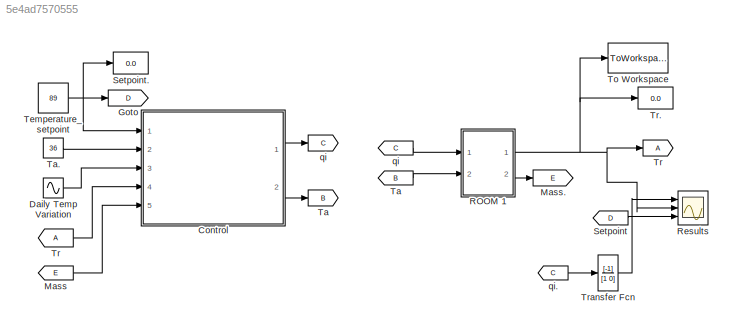
MODEL slx_5e4ad7570555
KIND model
CONFIG AbsTol = auto
CONFIG FixedStep = auto
CONFIG InitFcn = Addpath_websocket;\nserver = Sim_server(10000);
CONFIG MaxStep = auto
CONFIG MinStep = auto
CONFIG RelTol = 1e-3
CONFIG SampleTimeConstraint = Unconstrained
CONFIG Solver = VariableStepAuto
CONFIG SolverMode = Auto
CONFIG SolverName = VariableStepAuto
CONFIG StartTime = 0.0
CONFIG StopFcn = server.stop
CONFIG StopTime = Inf
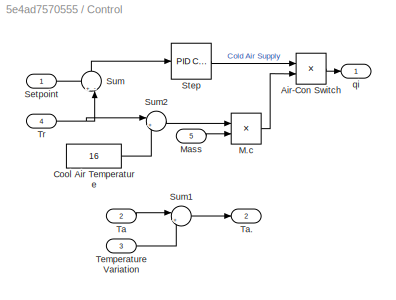
BLOCK [SubSystem] Control
  Ports = [5, 2]
  RequestExecContextInheritance = off
  Variant = off
BLOCK [Product] Control/Air-Con Switch
  InputSameDT = off
  OutDataTypeStr = Inherit: Inherit via internal rule
  OutMax = 24
  OutMin = 16
  Ports = [2, 1]
  SaturateOnIntegerOverflow = off
BLOCK [Constant] Control/Cool  Air Temperature
  Value = 16
BLOCK [Product] Control/M.c
  InputSameDT = off
  OutDataTypeStr = Inherit: Inherit via internal rule
  Ports = [2, 1]
  SaturateOnIntegerOverflow = off
BLOCK [Inport] Control/Mass
  IconDisplay = Port number
  Port = 5
BLOCK [Inport] Control/Setpoint
  IconDisplay = Port number
BLOCK [Reference] Control/Step   REF=simulink/Continuous/PID Controller
  Ports = [1, 1]
  SourceBlock = simulink/Continuous/PID Controller
  SourceType = PID 1dof
BLOCK [Sum] Control/Sum
  IconShape = round
  Inputs = +-|
  Ports = [2, 1]
BLOCK [Sum] Control/Sum1
  IconShape = round
  Inputs = |++
  Ports = [2, 1]
BLOCK [Sum] Control/Sum2
  IconShape = round
  InputSameDT = off
  Inputs = |+-
  OutDataTypeStr = Inherit: Inherit via internal rule
  Ports = [2, 1]
  SaturateOnIntegerOverflow = off
BLOCK [Inport] Control/Ta
  IconDisplay = Port number
  Port = 2
BLOCK [Outport] Control/Ta.
  IconDisplay = Port number
  Port = 2
BLOCK [Inport] Control/Temperature Variation
  IconDisplay = Port number
  Port = 3
BLOCK [Inport] Control/Tr
  IconDisplay = Port number
  Port = 4
BLOCK [Outport] Control/qi
  IconDisplay = Port number
BLOCK [Sin] Daily Temp Variation
  Amplitude = 15
  Frequency = 2*pi/24
  Ports = [0, 1]
  SampleTime = 0
BLOCK [Goto] Goto
  GotoTag = D
BLOCK [From] Mass
  GotoTag = E
BLOCK [Goto] Mass.
  GotoTag = E
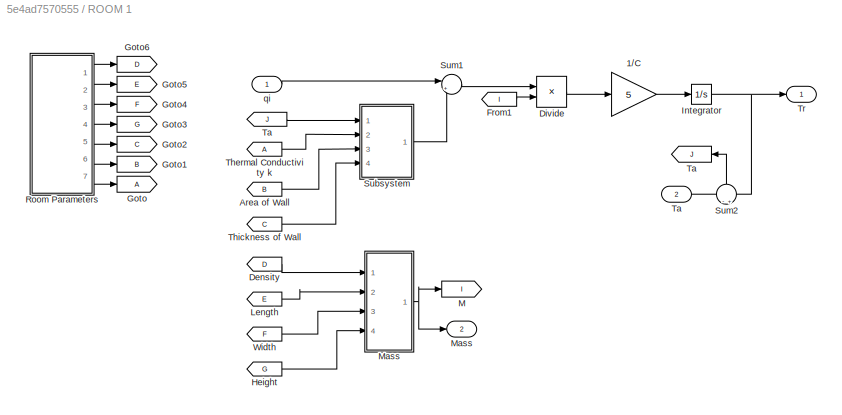
BLOCK [SubSystem] ROOM 1
  Ports = [2, 2]
  RequestExecContextInheritance = off
  Variant = off
BLOCK [Gain] ROOM 1/1//C
  Gain = 5
BLOCK [From] ROOM 1/Area of Wall
  GotoTag = B
BLOCK [From] ROOM 1/Density 
  GotoTag = D
BLOCK [Product] ROOM 1/Divide
  InputSameDT = off
  Inputs = */
  OutDataTypeStr = Inherit: Inherit via internal rule
  Ports = [2, 1]
  RndMeth = Floor
  SaturateOnIntegerOverflow = off
BLOCK [From] ROOM 1/From1
  GotoTag = I
BLOCK [Goto] ROOM 1/Goto
BLOCK [Goto] ROOM 1/Goto1
  GotoTag = B
BLOCK [Goto] ROOM 1/Goto2
  GotoTag = C
BLOCK [Goto] ROOM 1/Goto3
  GotoTag = G
BLOCK [Goto] ROOM 1/Goto4
  GotoTag = F
BLOCK [Goto] ROOM 1/Goto5
  GotoTag = E
BLOCK [Goto] ROOM 1/Goto6
  GotoTag = D
BLOCK [From] ROOM 1/Height
  GotoTag = G
BLOCK [Integrator] ROOM 1/Integrator
  InitialCondition = 30
  LimitOutput = on
  LowerSaturationLimit = 14
  Ports = [1, 1]
  UpperSaturationLimit = 100
BLOCK [From] ROOM 1/Length 
  GotoTag = E
BLOCK [Goto] ROOM 1/M
  GotoTag = I
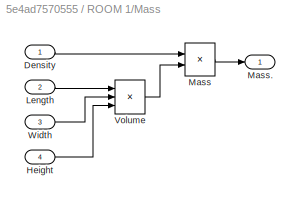
BLOCK [SubSystem] ROOM 1/Mass
  Ports = [4, 1]
  RequestExecContextInheritance = off
  Variant = off
BLOCK [Outport] ROOM 1/Mass 
  IconDisplay = Port number
  InitialOutput = 0
  Port = 2
BLOCK [Inport] ROOM 1/Mass/Density
  IconDisplay = Port number
BLOCK [Inport] ROOM 1/Mass/Height
  IconDisplay = Port number
  Port = 4
BLOCK [Inport] ROOM 1/Mass/Length
  IconDisplay = Port number
  Port = 2
BLOCK [Product] ROOM 1/Mass/Mass
  InputSameDT = off
  OutDataTypeStr = Inherit: Inherit via internal rule
  Ports = [2, 1]
  RndMeth = Floor
  SaturateOnIntegerOverflow = off
BLOCK [Outport] ROOM 1/Mass/Mass.
  IconDisplay = Port number
BLOCK [Product] ROOM 1/Mass/Volume
  InputSameDT = off
  Inputs = 3
  OutDataTypeStr = Inherit: Inherit via internal rule
  Ports = [3, 1]
  RndMeth = Floor
  SaturateOnIntegerOverflow = off
BLOCK [Inport] ROOM 1/Mass/Width
  IconDisplay = Port number
  Port = 3
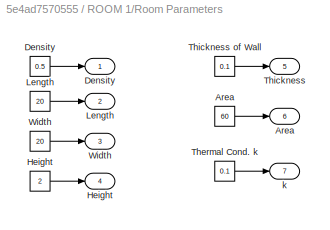
BLOCK [SubSystem] ROOM 1/Room Parameters
  Ports = [0, 7]
  RequestExecContextInheritance = off
  Variant = off
BLOCK [Constant] ROOM 1/Room Parameters/Area
  Value = 60
BLOCK [Outport] ROOM 1/Room Parameters/Area 
  IconDisplay = Port number
  InitialOutput = 0
  Port = 6
BLOCK [Constant] ROOM 1/Room Parameters/Density
  Value = 0.5
BLOCK [Outport] ROOM 1/Room Parameters/Density 
  IconDisplay = Port number
  InitialOutput = 0
BLOCK [Constant] ROOM 1/Room Parameters/Height
  Value = 2
BLOCK [Outport] ROOM 1/Room Parameters/Height 
  IconDisplay = Port number
  InitialOutput = 0
  Port = 4
BLOCK [Constant] ROOM 1/Room Parameters/Length
  Value = 20
BLOCK [Outport] ROOM 1/Room Parameters/Length 
  IconDisplay = Port number
  InitialOutput = 0
  Port = 2
BLOCK [Constant] ROOM 1/Room Parameters/Thermal Cond. k
  Value = 0.1
BLOCK [Outport] ROOM 1/Room Parameters/Thickness
  IconDisplay = Port number
  InitialOutput = 0
  Port = 5
BLOCK [Constant] ROOM 1/Room Parameters/Thickness of Wall
  Value = 0.1
BLOCK [Constant] ROOM 1/Room Parameters/Width
  Value = 20
BLOCK [Outport] ROOM 1/Room Parameters/Width 
  IconDisplay = Port number
  InitialOutput = 0
  Port = 3
BLOCK [Outport] ROOM 1/Room Parameters/k
  IconDisplay = Port number
  InitialOutput = 0
  Port = 7
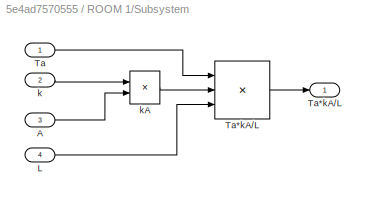
BLOCK [SubSystem] ROOM 1/Subsystem
  Ports = [4, 1]
  RequestExecContextInheritance = off
  Variant = off
BLOCK [Inport] ROOM 1/Subsystem/A
  IconDisplay = Port number
  Port = 3
BLOCK [Inport] ROOM 1/Subsystem/L
  IconDisplay = Port number
  Port = 4
BLOCK [Inport] ROOM 1/Subsystem/Ta
  IconDisplay = Port number
BLOCK [Product] ROOM 1/Subsystem/Ta*kA//L
  InputSameDT = off
  Inputs = **/
  OutDataTypeStr = Inherit: Inherit via internal rule
  Ports = [3, 1]
  RndMeth = Floor
  SaturateOnIntegerOverflow = off
BLOCK [Outport] ROOM 1/Subsystem/Ta*kA//L 
  IconDisplay = Port number
BLOCK [Inport] ROOM 1/Subsystem/k
  IconDisplay = Port number
  Port = 2
BLOCK [Product] ROOM 1/Subsystem/kA
  InputSameDT = off
  OutDataTypeStr = Inherit: Inherit via internal rule
  Ports = [2, 1]
  RndMeth = Floor
  SaturateOnIntegerOverflow = off
BLOCK [Sum] ROOM 1/Sum1
  IconShape = round
  Inputs = |+-
  Ports = [2, 1]
BLOCK [Sum] ROOM 1/Sum2
  IconShape = round
  Inputs = -+
  Ports = [2, 1]
BLOCK [Inport] ROOM 1/Ta
  IconDisplay = Port number
  Port = 2
BLOCK [From] ROOM 1/Ta 
  GotoTag = J
BLOCK [From] ROOM 1/Thermal Conductivity k
BLOCK [From] ROOM 1/Thickness of Wall
  GotoTag = C
BLOCK [Outport] ROOM 1/Tr
  IconDisplay = Port number
  InitialOutput = 0
BLOCK [From] ROOM 1/Width
  GotoTag = F
BLOCK [Inport] ROOM 1/qi
  IconDisplay = Port number
BLOCK [Scope] Results
  NumInputPorts = 3
  Ports = [3]
  ScopeSpecificationString = Simulink.scopes.TimeScopeBlockCfg('CurrentConfiguration', extmgr.ConfigurationSet(extmgr.Configuration('Core','General UI',true),extmgr.Configuration('Core','Source UI',true),extmgr.Configuration('Sources','WiredSimulink',true,'DataLoggingVariableName','ScopeData1','DataLoggingSaveFormat','Array','DataLoggingDecimation','1','DataLoggingDecimateData',true),extmgr.Configuration('Visuals','Time Domai...<+2382ch>
BLOCK [From] Setpoint 
  GotoTag = D
BLOCK [Display] Setpoint.
  Decimation = 1
  Ports = [1]
BLOCK [Goto] Ta
  GotoTag = B
BLOCK [From] Ta 
  GotoTag = B
BLOCK [Constant] Ta.
  Value = 36
BLOCK [Constant] Temperature_setpoint
  Value = 89
BLOCK [ToWorkspace] To Workspace
  FixptAsFi = on
  MaxDataPoints = inf
  Ports = [1]
  SampleTime = -1
  Save2DSignal = 3-D array (concatenate along third dimension)
  SaveFormat = Timeseries
  VariableName = Tbs
BLOCK [Goto] Tr
BLOCK [From] Tr 
BLOCK [Display] Tr.
  Decimation = 1
  Ports = [1]
BLOCK [TransferFcn] Transfer Fcn
  Denominator = [1 0]
  Numerator = [-1]
BLOCK [Goto] qi
  GotoTag = C
BLOCK [From] qi 
  GotoTag = C
BLOCK [From] qi.
  GotoTag = C
LINE Control/Air-Con Switch:1 -> Control/qi:1
LINE Control/Cool  Air Temperature:1 -> Control/Sum2:2
LINE Control/M.c:1 -> Control/Air-Con Switch:2
LINE Control/Mass:1 -> Control/M.c:2
LINE Control/Setpoint:1 -> Control/Sum:1
LINE Control/Step :1 -> Control/Air-Con Switch:1
LINE Control/Sum1:1 -> Control/Ta.:1
LINE Control/Sum2:1 -> Control/M.c:1
LINE Control/Sum:1 -> Control/Step :1
LINE Control/Ta:1 -> Control/Sum1:1
LINE Control/Temperature Variation:1 -> Control/Sum1:2
NET Control/Tr:1 -> Control/Sum2:1, Control/Sum:2
LINE Control:1 -> qi:1
LINE Control:2 -> Ta:1
LINE Daily Temp Variation:1 -> Control:3
LINE Mass:1 -> Control:5
LINE ROOM 1/1//C:1 -> ROOM 1/Integrator:1
LINE ROOM 1/Area of Wall:1 -> ROOM 1/Subsystem:3
LINE ROOM 1/Density :1 -> ROOM 1/Mass:1
LINE ROOM 1/Divide:1 -> ROOM 1/1//C:1
LINE ROOM 1/From1:1 -> ROOM 1/Divide:2
LINE ROOM 1/Height:1 -> ROOM 1/Mass:4
NET ROOM 1/Integrator:1 -> ROOM 1/Sum2:2, ROOM 1/Tr:1
LINE ROOM 1/Length :1 -> ROOM 1/Mass:2
LINE ROOM 1/Mass/Density:1 -> ROOM 1/Mass/Mass:1
LINE ROOM 1/Mass/Height:1 -> ROOM 1/Mass/Volume:3
LINE ROOM 1/Mass/Length:1 -> ROOM 1/Mass/Volume:1
LINE ROOM 1/Mass/Mass:1 -> ROOM 1/Mass/Mass.:1
LINE ROOM 1/Mass/Volume:1 -> ROOM 1/Mass/Mass:2
LINE ROOM 1/Mass/Width:1 -> ROOM 1/Mass/Volume:2
NET ROOM 1/Mass:1 -> ROOM 1/M:1, ROOM 1/Mass :1
LINE ROOM 1/Room Parameters/Area:1 -> ROOM 1/Room Parameters/Area :1
LINE ROOM 1/Room Parameters/Density:1 -> ROOM 1/Room Parameters/Density :1
LINE ROOM 1/Room Parameters/Height:1 -> ROOM 1/Room Parameters/Height :1
LINE ROOM 1/Room Parameters/Length:1 -> ROOM 1/Room Parameters/Length :1
LINE ROOM 1/Room Parameters/Thermal Cond. k:1 -> ROOM 1/Room Parameters/k:1
LINE ROOM 1/Room Parameters/Thickness of Wall:1 -> ROOM 1/Room Parameters/Thickness:1
LINE ROOM 1/Room Parameters/Width:1 -> ROOM 1/Room Parameters/Width :1
LINE ROOM 1/Room Parameters:1 -> ROOM 1/Goto6:1
LINE ROOM 1/Room Parameters:2 -> ROOM 1/Goto5:1
LINE ROOM 1/Room Parameters:3 -> ROOM 1/Goto4:1
LINE ROOM 1/Room Parameters:4 -> ROOM 1/Goto3:1
LINE ROOM 1/Room Parameters:5 -> ROOM 1/Goto2:1
LINE ROOM 1/Room Parameters:6 -> ROOM 1/Goto1:1
LINE ROOM 1/Room Parameters:7 -> ROOM 1/Goto:1
LINE ROOM 1/Subsystem/A:1 -> ROOM 1/Subsystem/kA:2
LINE ROOM 1/Subsystem/L:1 -> ROOM 1/Subsystem/Ta*kA//L:3
LINE ROOM 1/Subsystem/Ta*kA//L:1 -> ROOM 1/Subsystem/Ta*kA//L :1
LINE ROOM 1/Subsystem/Ta:1 -> ROOM 1/Subsystem/Ta*kA//L:1
LINE ROOM 1/Subsystem/k:1 -> ROOM 1/Subsystem/kA:1
LINE ROOM 1/Subsystem/kA:1 -> ROOM 1/Subsystem/Ta*kA//L:2
LINE ROOM 1/Subsystem:1 -> ROOM 1/Sum1:2
LINE ROOM 1/Sum1:1 -> ROOM 1/Divide:1
LINE ROOM 1/Sum2:1 -> ROOM 1/Ta :1
LINE ROOM 1/Ta :1 -> ROOM 1/Subsystem:1
LINE ROOM 1/Ta:1 -> ROOM 1/Sum2:1
LINE ROOM 1/Thermal Conductivity k:1 -> ROOM 1/Subsystem:2
LINE ROOM 1/Thickness of Wall:1 -> ROOM 1/Subsystem:4
LINE ROOM 1/Width:1 -> ROOM 1/Mass:3
LINE ROOM 1/qi:1 -> ROOM 1/Sum1:1
NET ROOM 1:1 -> Results:2, To Workspace:1, Tr.:1, Tr:1
LINE ROOM 1:2 -> Mass.:1
LINE Setpoint :1 -> Results:3
LINE Ta :1 -> ROOM 1:2
LINE Ta.:1 -> Control:2
NET Temperature_setpoint:1 -> Control:1, Goto:1, Setpoint.:1
LINE Tr :1 -> Control:4
LINE Transfer Fcn:1 -> Results:1
LINE qi :1 -> ROOM 1:1
LINE qi.:1 -> Transfer Fcn:1
note: NET lines group one-source signal fan-out (src -> all destinations, sorted); 1:1 wires keep LINE
